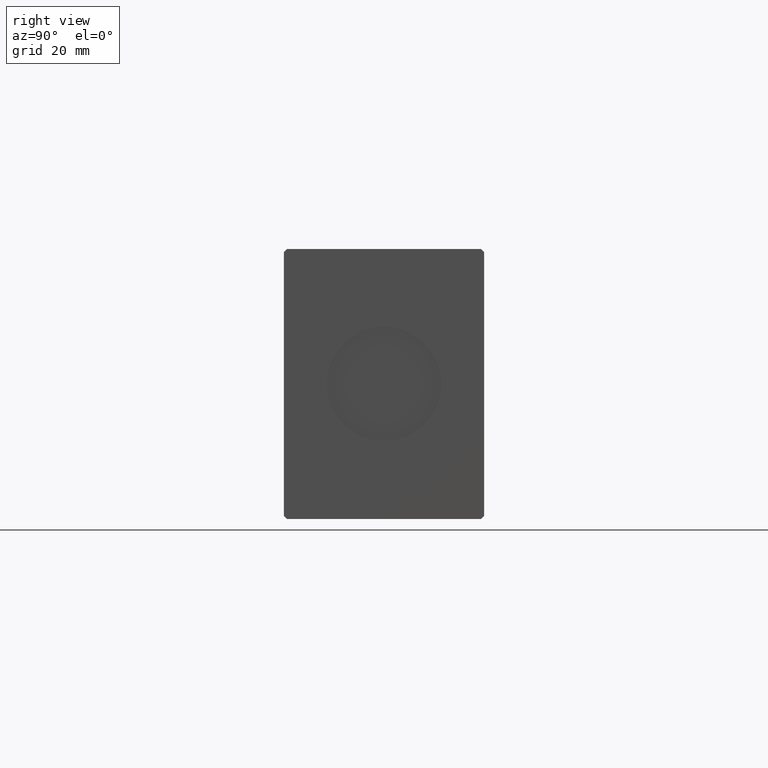
[diagram: clean part render]
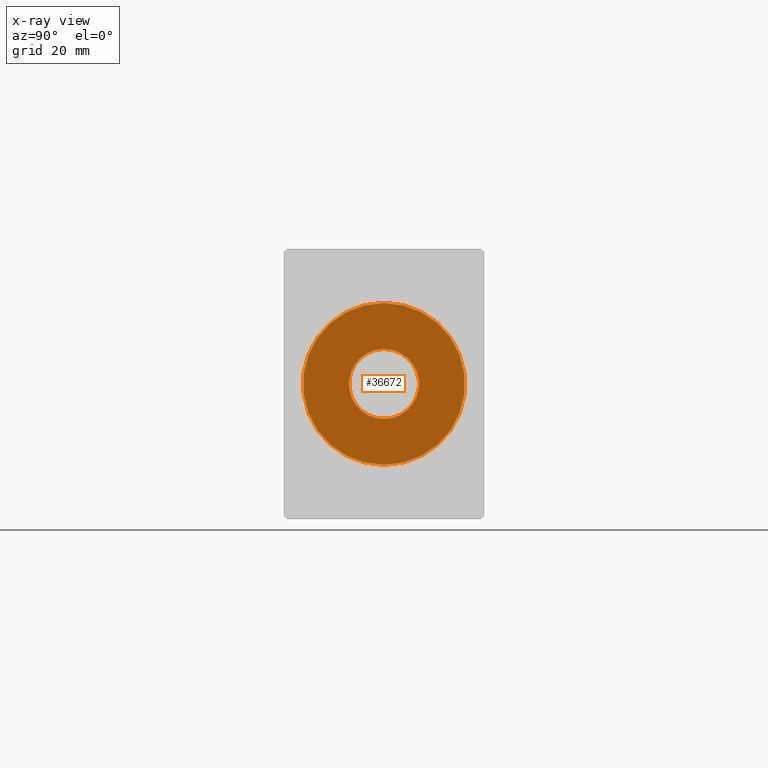
[diagram: x-ray — body ghosted, one internal face saturated and labeled with its STEP entity id]
A machine part, right view, then the same camera in x-ray: the body is ghosted and one INTERNAL B-rep face — a face not visible from any outside direction — is saturated and labeled: STEP entity #36672.
In plain terms, the highlighted planar face has unit normal (-1, 0, 0).
Its self-contained STEP definition (entity closure, byte-faithful):
#1027 = EDGE_LOOP ( 'NONE', ( #33990, #7430 ) ) ;
#1367 = CARTESIAN_POINT ( 'NONE',  ( -11.00000000000000000, 0.000000000000000000, 0.000000000000000000 ) ) ;
#1923 = EDGE_LOOP ( 'NONE', ( #35244, #18378 ) ) ;
#2644 = AXIS2_PLACEMENT_3D ( 'NONE', #39569, #8684, #36529 ) ;
#2828 = EDGE_CURVE ( 'NONE', #5631, #5989, #31180, .T. ) ;
#2909 = CARTESIAN_POINT ( 'NONE',  ( 25.50000000000000000, 3.122849337825750222E-15, 0.000000000000000000 ) ) ;
#5406 = DIRECTION ( 'NONE',  ( -0.000000000000000000, 0.000000000000000000, 1.000000000000000000 ) ) ;
#5631 = VERTEX_POINT ( 'NONE', #2909 ) ;
#5989 = VERTEX_POINT ( 'NONE', #37127 ) ;
#6143 = DIRECTION ( 'NONE',  ( 1.000000000000000000, 0.000000000000000000, -0.000000000000000000 ) ) ;
#7228 = CARTESIAN_POINT ( 'NONE',  ( 0.000000000000000000, 0.000000000000000000, 0.000000000000000000 ) ) ;
#7310 = AXIS2_PLACEMENT_3D ( 'NONE', #7228, #37720, #16527 ) ;
#7425 = CARTESIAN_POINT ( 'NONE',  ( 0.000000000000000000, 0.000000000000000000, 0.000000000000000000 ) ) ;
#7430 = ORIENTED_EDGE ( 'NONE', *, *, #28473, .T. ) ;
#8684 = DIRECTION ( 'NONE',  ( 0.000000000000000000, 0.000000000000000000, 1.000000000000000000 ) ) ;
#9179 = FACE_OUTER_BOUND ( 'NONE', #1923, .T. ) ;
#10445 = EDGE_CURVE ( 'NONE', #5989, #5631, #32929, .T. ) ;
#11483 = CARTESIAN_POINT ( 'NONE',  ( 0.000000000000000000, 0.000000000000000000, 0.000000000000000000 ) ) ;
#14709 = DIRECTION ( 'NONE',  ( 1.000000000000000000, 0.000000000000000000, 0.000000000000000000 ) ) ;
#16527 = DIRECTION ( 'NONE',  ( 1.000000000000000000, 0.000000000000000000, 0.000000000000000000 ) ) ;
#16655 = CIRCLE ( 'NONE', #17313, 11.00000000000000000 ) ;
#16717 = DIRECTION ( 'NONE',  ( -0.000000000000000000, 0.000000000000000000, 1.000000000000000000 ) ) ;
#17313 = AXIS2_PLACEMENT_3D ( 'NONE', #7425, #16717, #38906 ) ;
#18378 = ORIENTED_EDGE ( 'NONE', *, *, #2828, .F. ) ;
#18481 = CARTESIAN_POINT ( 'NONE',  ( 0.000000000000000000, 0.000000000000000000, 0.000000000000000000 ) ) ;
#21477 = CARTESIAN_POINT ( 'NONE',  ( 11.00000000000000000, 1.347111479062088405E-15, 0.000000000000000000 ) ) ;
#28473 = EDGE_CURVE ( 'NONE', #39042, #32617, #16655, .T. ) ;
#29751 = CIRCLE ( 'NONE', #33010, 11.00000000000000000 ) ;
#31180 = CIRCLE ( 'NONE', #7310, 25.50000000000000000 ) ;
#31191 = DIRECTION ( 'NONE',  ( 0.000000000000000000, 0.000000000000000000, 1.000000000000000000 ) ) ;
#31656 = AXIS2_PLACEMENT_3D ( 'NONE', #18481, #31191, #6143 ) ;
#32617 = VERTEX_POINT ( 'NONE', #1367 ) ;
#32929 = CIRCLE ( 'NONE', #2644, 25.50000000000000000 ) ;
#33010 = AXIS2_PLACEMENT_3D ( 'NONE', #11483, #5406, #14709 ) ;
#33810 = FACE_BOUND ( 'NONE', #1027, .T. ) ;
#33990 = ORIENTED_EDGE ( 'NONE', *, *, #38650, .T. ) ;
#34600 = PLANE ( 'NONE',  #31656 ) ;
#35244 = ORIENTED_EDGE ( 'NONE', *, *, #10445, .F. ) ;
#36529 = DIRECTION ( 'NONE',  ( 1.000000000000000000, 0.000000000000000000, 0.000000000000000000 ) ) ;
#36672 = ADVANCED_FACE ( 'NONE', ( #9179, #33810 ), #34600, .F. ) ;
#37127 = CARTESIAN_POINT ( 'NONE',  ( -25.50000000000000000, 0.000000000000000000, 0.000000000000000000 ) ) ;
#37720 = DIRECTION ( 'NONE',  ( 0.000000000000000000, 0.000000000000000000, 1.000000000000000000 ) ) ;
#38650 = EDGE_CURVE ( 'NONE', #32617, #39042, #29751, .T. ) ;
#38906 = DIRECTION ( 'NONE',  ( 1.000000000000000000, 0.000000000000000000, 0.000000000000000000 ) ) ;
#39042 = VERTEX_POINT ( 'NONE', #21477 ) ;
#39569 = CARTESIAN_POINT ( 'NONE',  ( 0.000000000000000000, 0.000000000000000000, 0.000000000000000000 ) ) ;